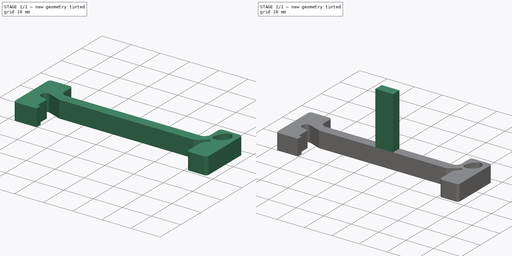
[diagram: build sequence overview — one tinted view per stage of 2, left to right]
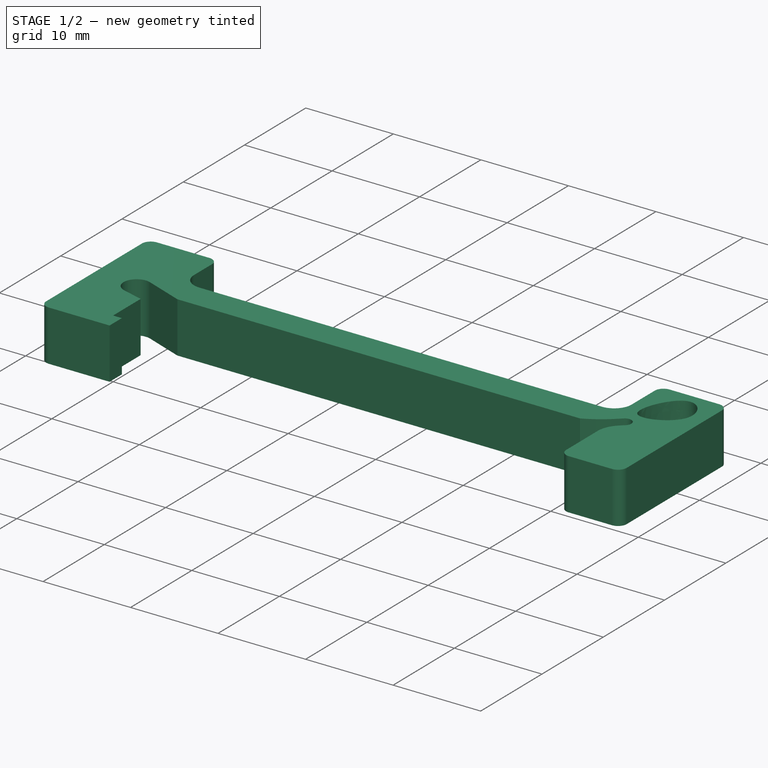
[diagram: stage 1 of 2 — iso view after this stage's code; geometry added in this stage tinted green]
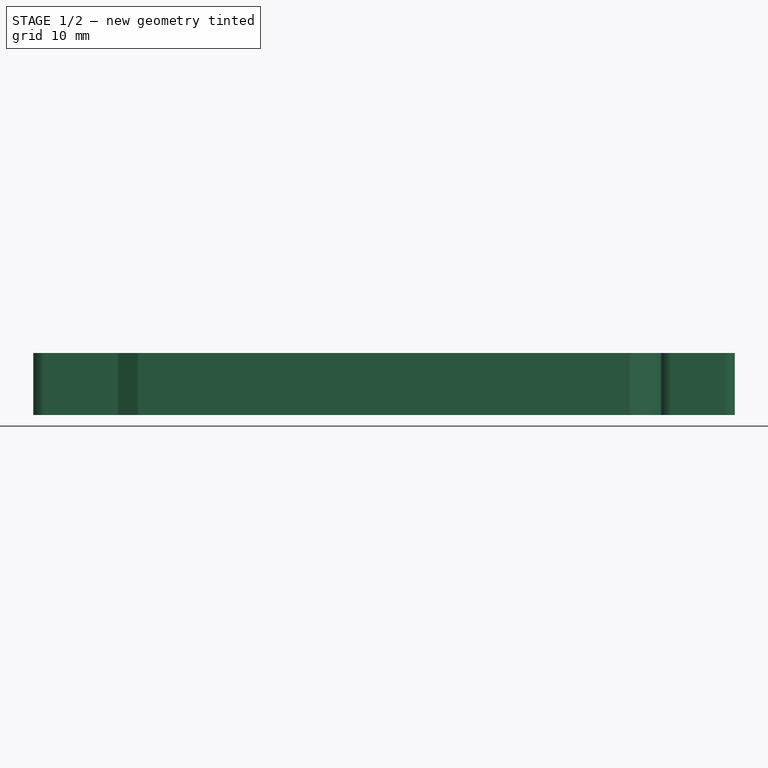
[diagram: stage 1 of 2 — front view after this stage's code; geometry added in this stage tinted green]
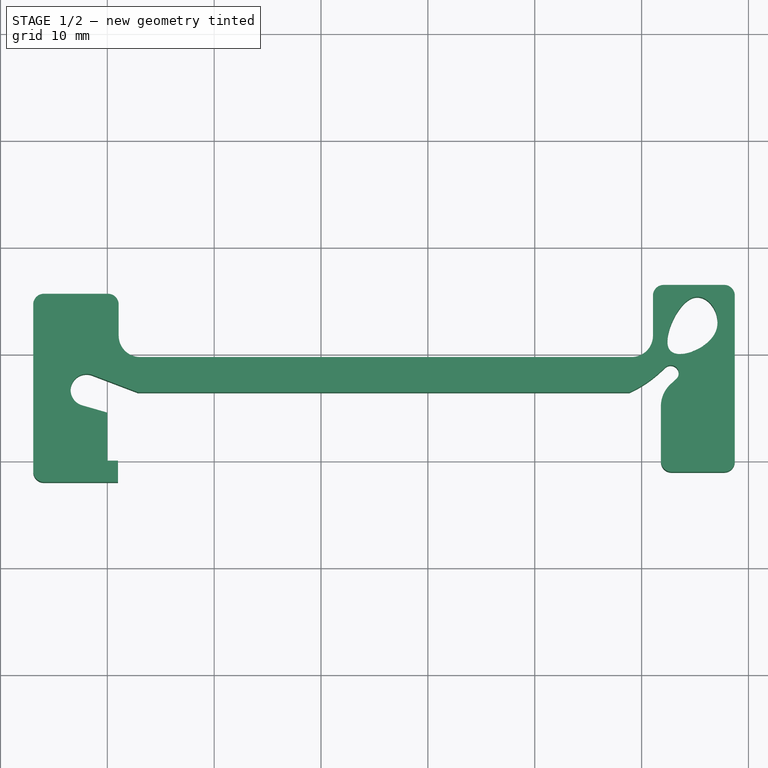
[diagram: stage 1 of 2 — top view after this stage's code; geometry added in this stage tinted green]
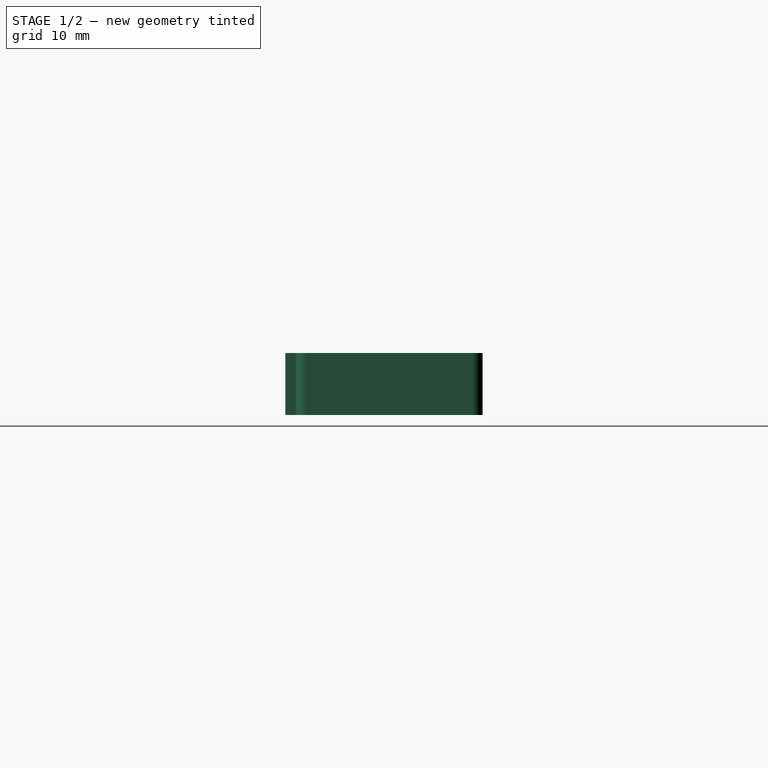
[diagram: stage 1 of 2 — right view after this stage's code; geometry added in this stage tinted green]
FCSTD DOCUMENT  (FreeCAD 0.20R29603 (Git))
Label: Abstandhalter
Comment: Abstandhalter für das Abflussgitter in Julias Dusche
License: All rights reserved
LicenseURL: http://en.wikipedia.org/wiki/All_rights_reserved
objects: Sketcher::SketchObject×2, PartDesign::Pad×2, PartDesign::Body×1
note: 7 computed .brp shape members not serialized (recipe doc carries the construction recipe); baked Part::Feature solids carry a one-line shape summary decoded from their .brp

FEATURE [Sketcher::SketchObject] Sketch001  label="Base"
  FullyConstrained = false
  MapMode = 5
  Support = -> [XY_Plane]
  sketch-geometry (39):
    g0: LineSegment StartX=3.06275 StartY=9.7 StartZ=0 EndX=49.0627 EndY=9.7 EndZ=0
    g1: ArcOfCircle CenterX=49.0627 CenterY=11.7 CenterZ=0 NormalX=0 NormalY=0 NormalZ=1 AngleXU=0 Radius=2 StartAngle=4.71239 EndAngle=6.28319
    g2: LineSegment StartX=51.0627 StartY=11.7 StartZ=0 EndX=51.0627 EndY=15.45 EndZ=0
    g3: ArcOfCircle CenterX=52.0627 CenterY=15.45 CenterZ=0 NormalX=0 NormalY=0 NormalZ=1 AngleXU=0 Radius=1 StartAngle=1.5708 EndAngle=3.14159
    g4: LineSegment StartX=52.0627 StartY=16.45 StartZ=0 EndX=57.7227 EndY=16.45 EndZ=0
    g5: ArcOfCircle CenterX=57.7227 CenterY=15.45 CenterZ=0 NormalX=0 NormalY=0 NormalZ=1 AngleXU=0 Radius=1 StartAngle=3e-16 EndAngle=1.5708
    g6: LineSegment StartX=58.7227 StartY=15.45 StartZ=0 EndX=58.7227 EndY=-0.05 EndZ=0
    g7: ArcOfCircle CenterX=57.7227 CenterY=-0.05 CenterZ=0 NormalX=0 NormalY=0 NormalZ=1 AngleXU=0 Radius=1 StartAngle=4.71239 EndAngle=6.28319
    g8: LineSegment StartX=57.7227 StartY=-1.05 StartZ=0 EndX=52.8027 EndY=-1.05 EndZ=0
    g9: ArcOfCircle CenterX=52.8027 CenterY=-0.05 CenterZ=0 NormalX=0 NormalY=0 NormalZ=1 AngleXU=0 Radius=1 StartAngle=3.14159 EndAngle=4.71239
    g10: LineSegment StartX=51.8027 StartY=-0.05 StartZ=0 EndX=51.8027 EndY=5.077 EndZ=0
    g11: ArcOfCircle CenterX=54.6503 CenterY=5.077 CenterZ=0 NormalX=0 NormalY=0 NormalZ=1 AngleXU=0 Radius=2.84756 StartAngle=2.31146 EndAngle=3.14159
    g12: LineSegment StartX=52.7288 StartY=7.17856 StartZ=0 EndX=53.2288 EndY=7.63572 EndZ=0
    g13: ArcOfCircle CenterX=52.7227 CenterY=8.18923 CenterZ=0 NormalX=0 NormalY=0 NormalZ=1 AngleXU=0 Radius=0.75 StartAngle=5.45306 EndAngle=8.59465
    g14: LineSegment StartX=52.2167 StartY=8.74274 StartZ=0 EndX=51.7167 EndY=8.28559 EndZ=0
    g15: ArcOfCircle CenterX=44.3217 CenterY=16.3736 CenterZ=0 NormalX=0 NormalY=0 NormalZ=1 AngleXU=0 Radius=10.959 StartAngle=5.13972 EndAngle=5.45306
    g16: LineSegment StartX=48.8636 StartY=6.4 StartZ=0 EndX=2.86358 EndY=6.4 EndZ=0
    g17: ArcOfCircle CenterX=3.06275 CenterY=11.7 CenterZ=0 NormalX=0 NormalY=0 NormalZ=1 AngleXU=0 Radius=2 StartAngle=3.14159 EndAngle=4.71239
    g18: LineSegment StartX=1.06275 StartY=11.7 StartZ=0 EndX=1.06275 EndY=14.62 EndZ=0
    g19: ArcOfCircle CenterX=0.0627461 CenterY=14.62 CenterZ=0 NormalX=0 NormalY=0 NormalZ=1 AngleXU=0 Radius=1 StartAngle=-9e-16 EndAngle=1.5708
    g20: LineSegment StartX=0.0627461 StartY=15.62 StartZ=0 EndX=-5.93725 EndY=15.62 EndZ=0
    g21: ArcOfCircle CenterX=-5.93725 CenterY=14.62 CenterZ=0 NormalX=0 NormalY=0 NormalZ=1 AngleXU=0 Radius=1 StartAngle=1.5708 EndAngle=3.14159
    g22: LineSegment StartX=-6.93725 StartY=14.62 StartZ=0 EndX=-6.93725 EndY=-1 EndZ=0
    g23: ArcOfCircle CenterX=-5.93725 CenterY=-1 CenterZ=0 NormalX=0 NormalY=0 NormalZ=1 AngleXU=0 Radius=1 StartAngle=3.14159 EndAngle=4.71239
    g24: LineSegment StartX=-5.93725 StartY=-2 StartZ=0 EndX=1 EndY=-2 EndZ=0
    g25: LineSegment StartX=1 StartY=-2 StartZ=0 EndX=1 EndY=0 EndZ=0
    g26: LineSegment StartX=1 StartY=0 StartZ=0 EndX=0 EndY=0 EndZ=0
    g27: LineSegment StartX=0 StartY=0 StartZ=0 EndX=0 EndY=4.5 EndZ=0
    g28: LineSegment StartX=2.86358 StartY=6.4 StartZ=0 EndX=-1.40433 EndY=8.02214 EndZ=0
    g29: ArcOfCircle CenterX=-1.93725 CenterY=6.62 CenterZ=0 NormalX=0 NormalY=0 NormalZ=1 AngleXU=0 Radius=1.5 StartAngle=1.20758 EndAngle=4.43154
    g30: LineSegment StartX=-2.353 StartY=5.17877 StartZ=0 EndX=0 EndY=4.5 EndZ=0
    g31: Circle CenterX=59.0856 CenterY=11.5356 CenterZ=0 NormalX=0 NormalY=0 NormalZ=1 AngleXU=0 Radius=1
    g32: Circle CenterX=50.4574 CenterY=8.2361 CenterZ=0 NormalX=0 NormalY=0 NormalZ=1 AngleXU=0 Radius=1
    g33: Circle CenterX=54.7268 CenterY=17.9344 CenterZ=0 NormalX=0 NormalY=0 NormalZ=1 AngleXU=0 Radius=1
    g34: BSplineCurve PolesCount=3 KnotsCount=4 Degree=3 IsPeriodic=1
    g35-g38: GeomPoint x4 (B-spline internal-alignment scaffolding for g34; pole/knot coordinates omitted)
  constraints (84):
    c: Horizontal(g0)
    c: Tangent(g0,g1) = -1.5708
    c: Tangent(g1,g2) = -1.5708
    c: Tangent(g2,g3) = 1.5708
    c: Horizontal(g4)
    c: Tangent(g4,g5) = 1.5708
    c: Vertical(g6)
    c: Tangent(g6,g7) = 1.5708
    c: Tangent(g8,g9) = 1.5708
    c: Vertical(g10)
    c: Tangent(g10,g11) = 1.5708
    c: Tangent(g12,g13) = -1.5708
    c: Tangent(g14,g15) = 1.5708
    c: Coincident(g15,g16)
    c: Horizontal(g16)
    c: DistanceY(g16,g0) = 3.3
    c: DistanceX(g2,g5) = 7.66
    c: Diameter(g7) = 2
    c: Diameter(g5) = 2
    c: Diameter(g9) = 2
    c: Parallel(g4,g8)
    c: DistanceX(g9,g6) = 6.92
    c: Diameter(g3) = 2
    c: DistanceY(g8,g3) = 17.5
    c: Parallel(g2,g6)
    c: Diameter(g13) = 1.5
    c: Parallel(g12,g14)
    c: Radius(g1) = 2
    c: Tangent(g13,g14) = -1.5708
    c: DistanceY(g0,g3) = 6.75
    c: DistanceX(g14,g14) = 0.5
    c: Equal(g14,g12)
    c: Equal(g0,g16)
    c: Tangent(g0,g17) = -1.5708
    c: Vertical(g18)
    c: Tangent(g18,g19) = -1.5708
    c: Horizontal(g20)
    c: Tangent(g20,g21) = -1.5708
    c: Vertical(g22)
    c: Tangent(g22,g23) = -1.5708
    c: Horizontal(g24)
    c: Coincident(g24,g25)
    c: Coincident(g25,g26)
    c: Horizontal(g26)
    c: Coincident(g26,g27)
    c: Vertical(g25)
    c: DistanceX(g26,g26) = 1
    c: Tangent(g11,g12) = 1.5708
    c: Equal(g17,g1)
    c: Distance(g0,g20) = 5.92
    c: Tangent(g9,g10) = 1.5708
    c: Distance(g13,g6) = 6
    c: Tangent(g5,g6) = 1.5708
    c: Tangent(g7,g8) = 1.5708
    c: Tangent(g3,g4) = 1.5708
    c: Tangent(g21,g22) = -1.5708
    c: Tangent(g17,g18) = 1.5708
    c: Tangent(g19,g20) = -1.5708
    c: Tangent(g23,g24) = -1.5708
    c: DistanceY(g25,g25) = 2
    c: Distance(g25,g22) = 8
    c: Distance(g21,g18) = 8
    c: Vertical(g27)
    c: DistanceY(g27,g27) = 4.5
    c: Distance(g20,g23) = 17.62
    c: Coincident(g16,g28)
    c: Tangent(g28,g29) = -1.5708
    c: Coincident(g30,g27)
    c: Radius(g29) = 1.5
    c: Tangent(g29,g30) = -1.5708
    c: Distance(g29,g22) = 5
    c: Distance(g29,g20) = 9
    c: Distance(g17,g1) = 50
    c: Coincident(g27,g-1)
    c: Weight(g31) = 1
    c: Equal(g31,g32)
    c: Equal(g31,g33)
    c: InternalAlignment(g31,g34)
    c: InternalAlignment(g32,g34)
    c: InternalAlignment(g33,g34)
    c: InternalAlignment(g35-g38 -> g34) x4
    c: Radius(g21) = 1
    c: Radius(g19) = 1
    c: Radius(g23) = 1
FEATURE [PartDesign::Pad] Pad
  Direction = (0,0,1)
  Length = 5.81
  Length2 = 10
  Profile = -> Sketch001
  ReferenceAxis = -> Sketch001 [N_Axis]
  Type = 0
  expr: Length = 5.81mm
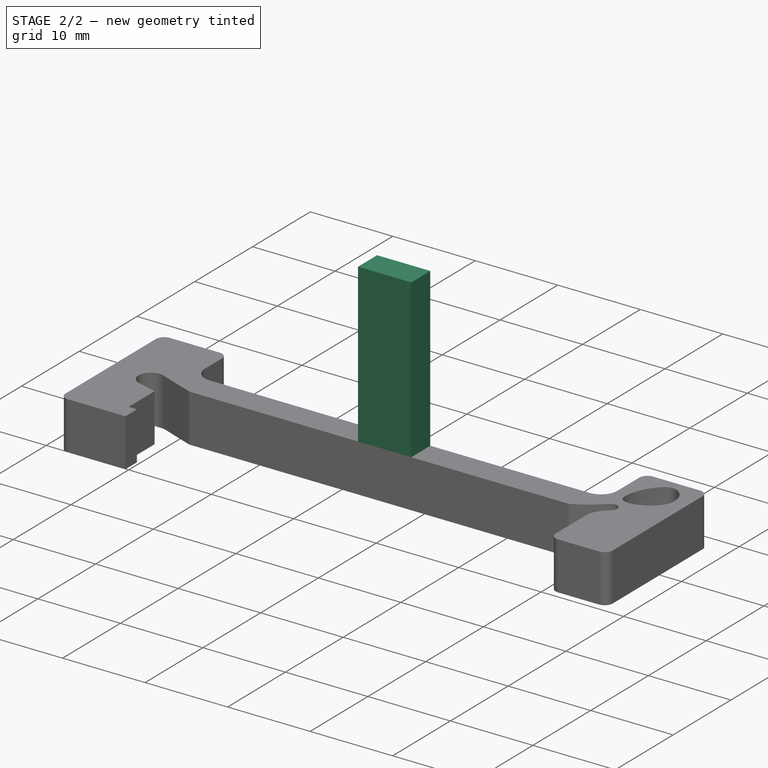
[diagram: stage 2 of 2 — iso view after this stage's code; geometry added in this stage tinted green]
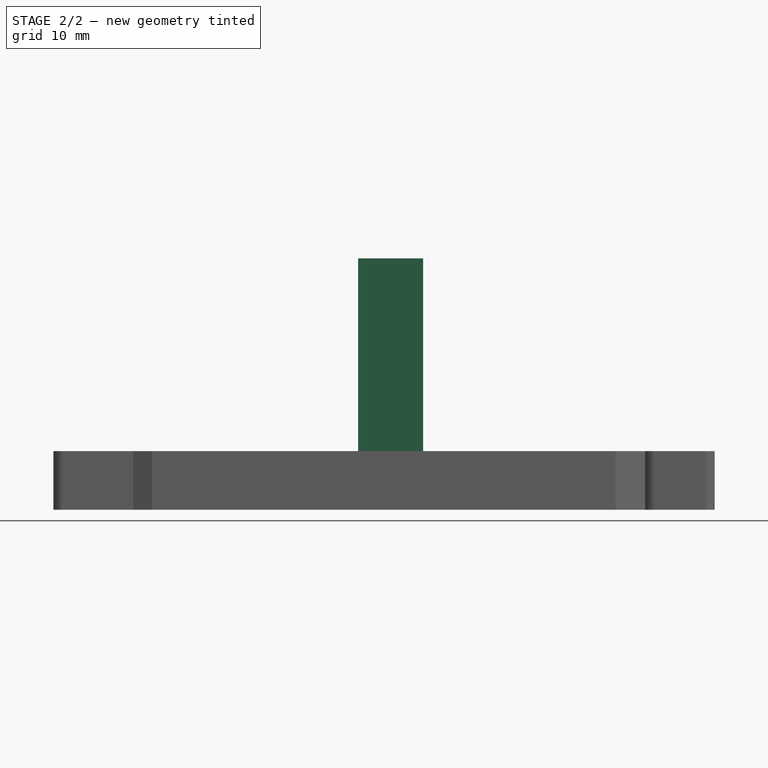
[diagram: stage 2 of 2 — front view after this stage's code; geometry added in this stage tinted green]
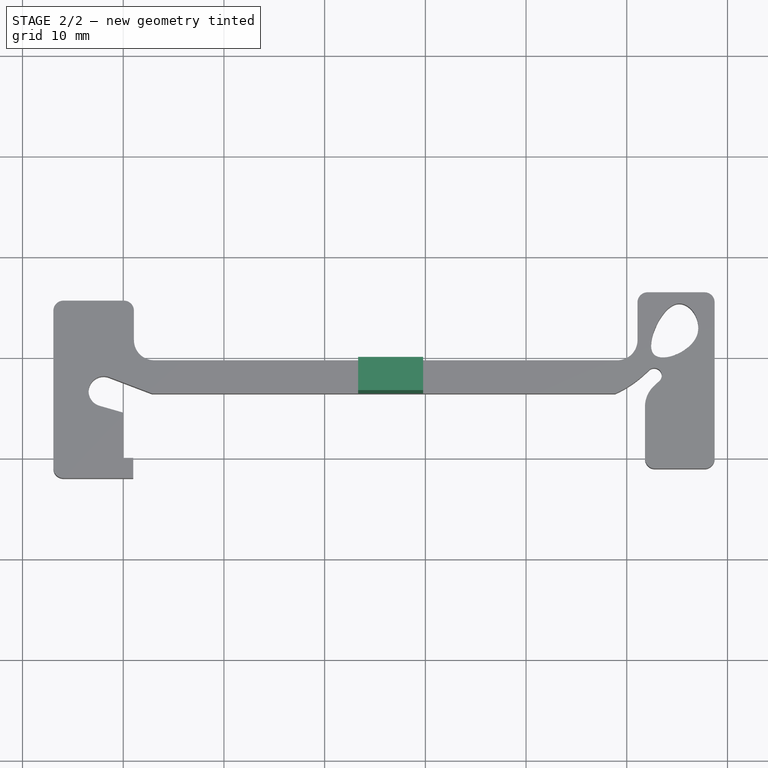
[diagram: stage 2 of 2 — top view after this stage's code; geometry added in this stage tinted green]
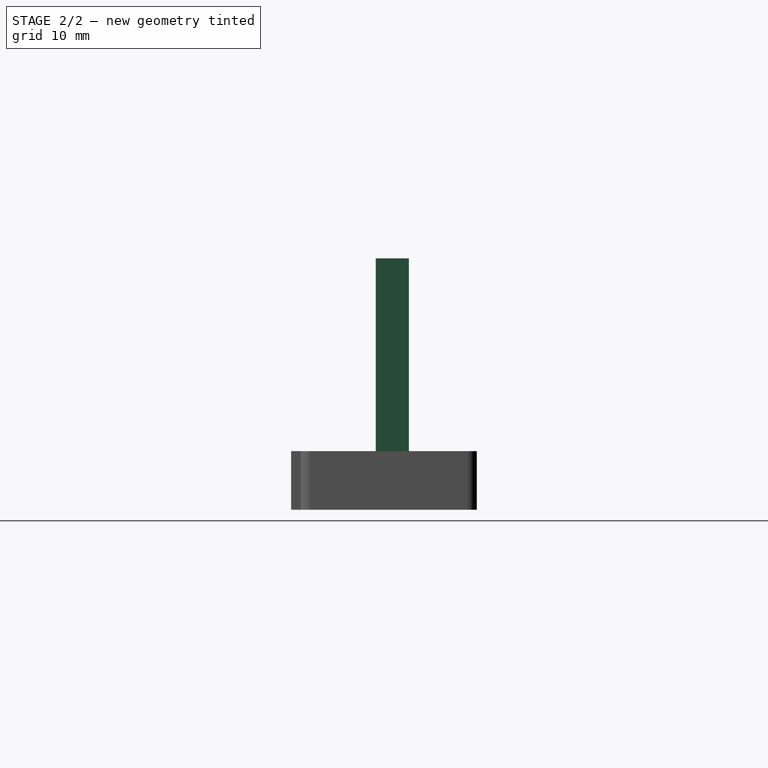
[diagram: stage 2 of 2 — right view after this stage's code; geometry added in this stage tinted green]
FEATURE [Sketcher::SketchObject] Sketch
  ExternalGeometry = -> [Pad]
  FullyConstrained = false
  MapMode = 5
  Placement = pos=(0,0,5.81) rot=(0,0,1;0rad)
  Support = -> [Pad]
  sketch-geometry (4):
    g0: LineSegment StartX=23.3227 StartY=9.7 StartZ=0 EndX=29.7727 EndY=9.7 EndZ=0
    g1: LineSegment StartX=29.7727 StartY=9.7 StartZ=0 EndX=29.7727 EndY=6.4 EndZ=0
    g2: LineSegment StartX=29.7727 StartY=6.4 StartZ=0 EndX=23.3227 EndY=6.4 EndZ=0
    g3: LineSegment StartX=23.3227 StartY=6.4 StartZ=0 EndX=23.3227 EndY=9.7 EndZ=0
  constraints (11):
    c: Coincident(g0,g1)
    c: Coincident(g1,g2)
    c: Coincident(g2,g3)
    c: Coincident(g3,g0)
    c: Horizontal(g0)
    c: Horizontal(g2)
    c: Vertical(g1)
    c: Vertical(g3)
    c: DistanceX(g0,g0) = 6.45
    c: DistanceY(g-6,g0) = 0
    c: DistanceY(g-5,g1) = 0
FEATURE [PartDesign::Pad] Pad001
  BaseFeature = -> Pad
  Direction = (0,0,1)
  Length = 19.15
  Length2 = 10
  Profile = -> Sketch
  ReferenceAxis = -> Sketch [N_Axis]
  Type = 0
FEATURE [PartDesign::Body] Body
  Group = -> [Sketch001,Pad,Sketch,Pad001]
  Origin = -> Origin
  Tip = -> Pad001
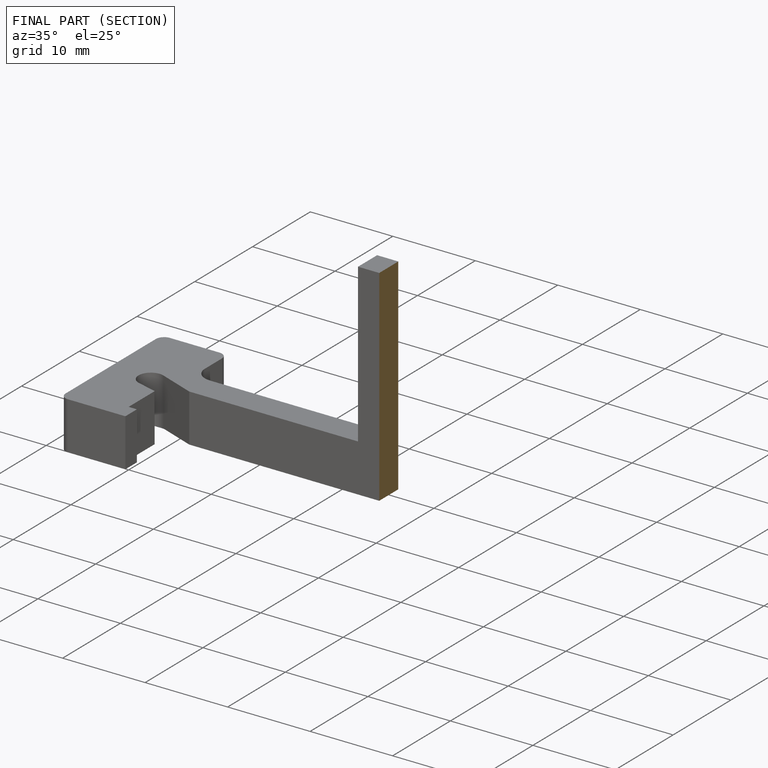
[diagram: finished part — half-section view (interior)]
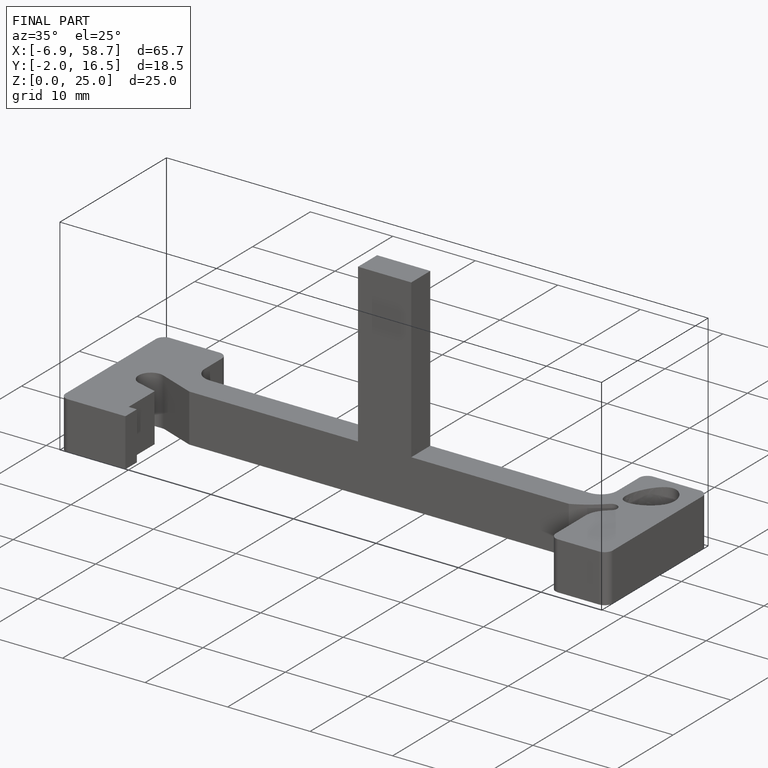
[diagram: finished part — iso view with bounding-box wireframe]
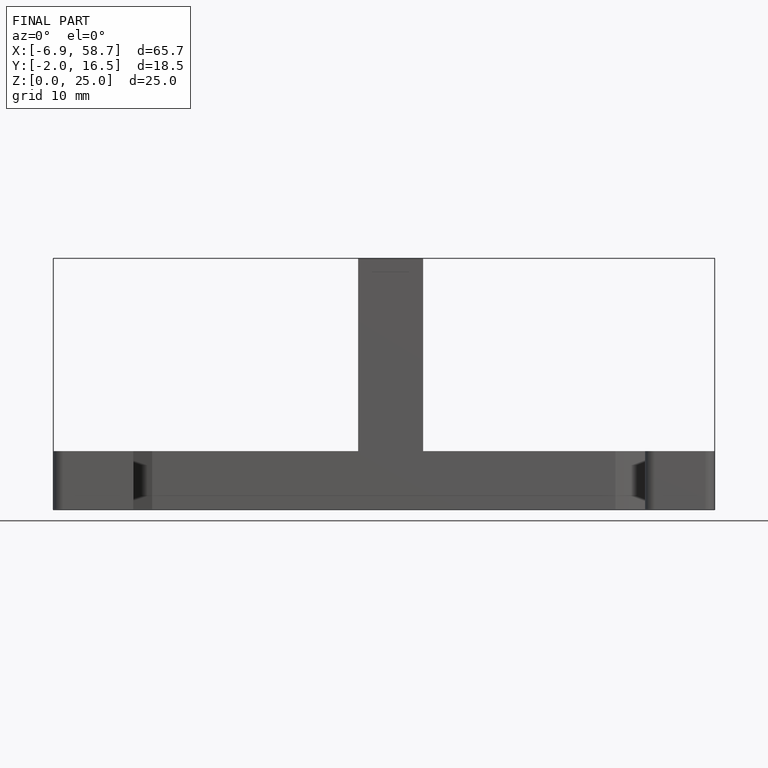
[diagram: finished part — front view with bounding-box wireframe]
